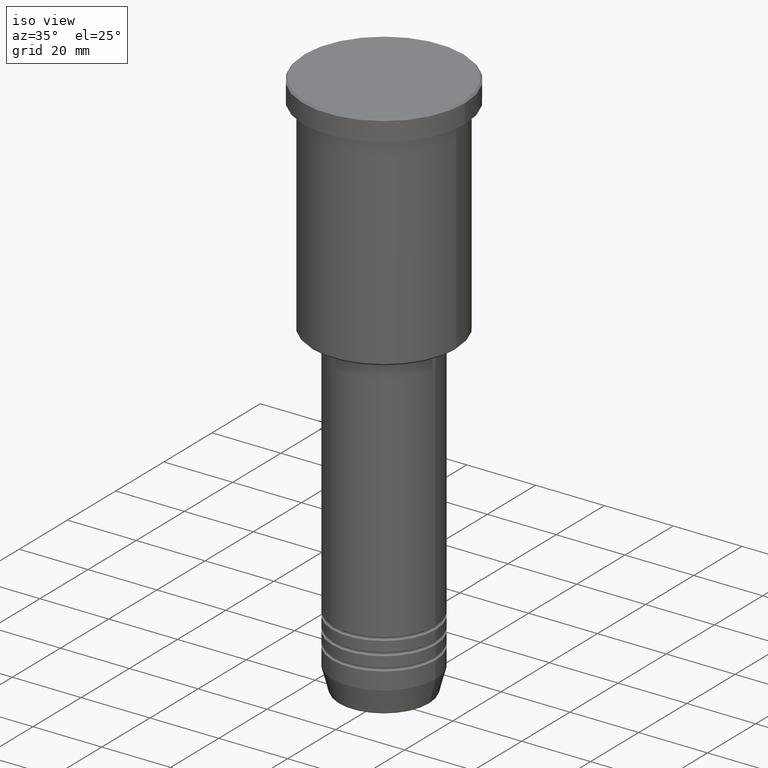
[diagram: clean part render]
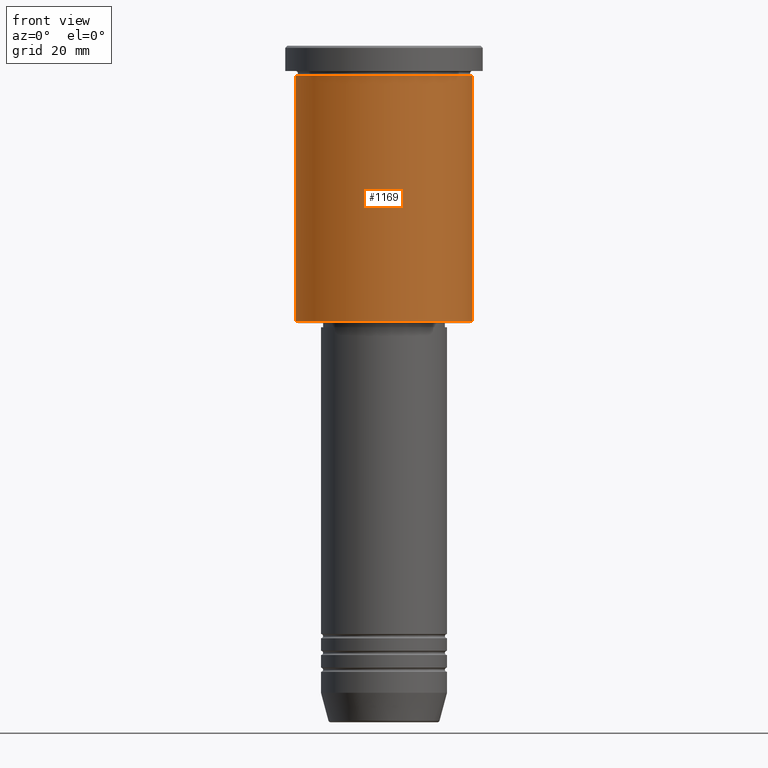
[diagram: tour spotlight — one face highlighted and labeled with its STEP entity id]
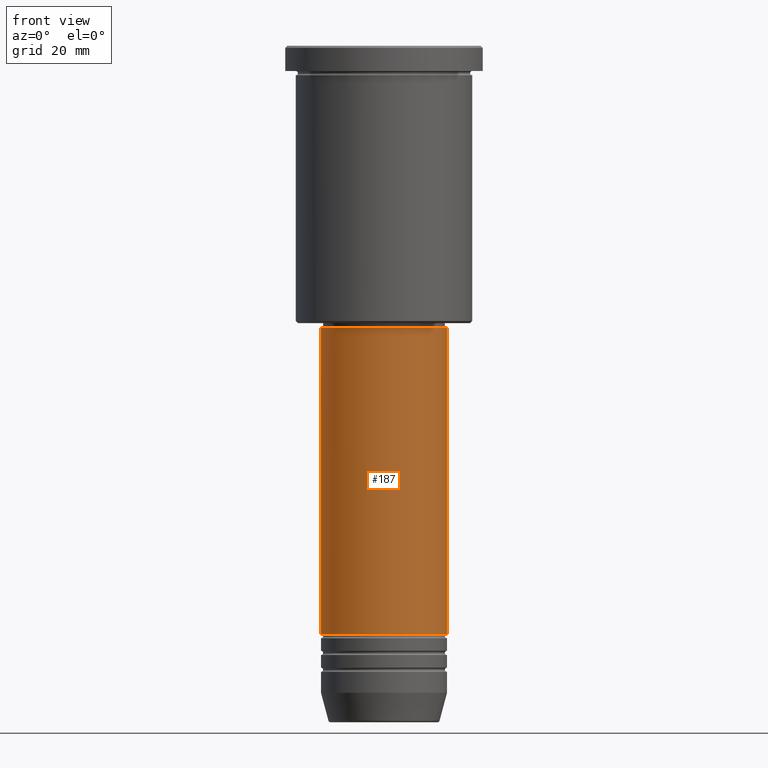
[diagram: tour spotlight — one face highlighted and labeled with its STEP entity id]
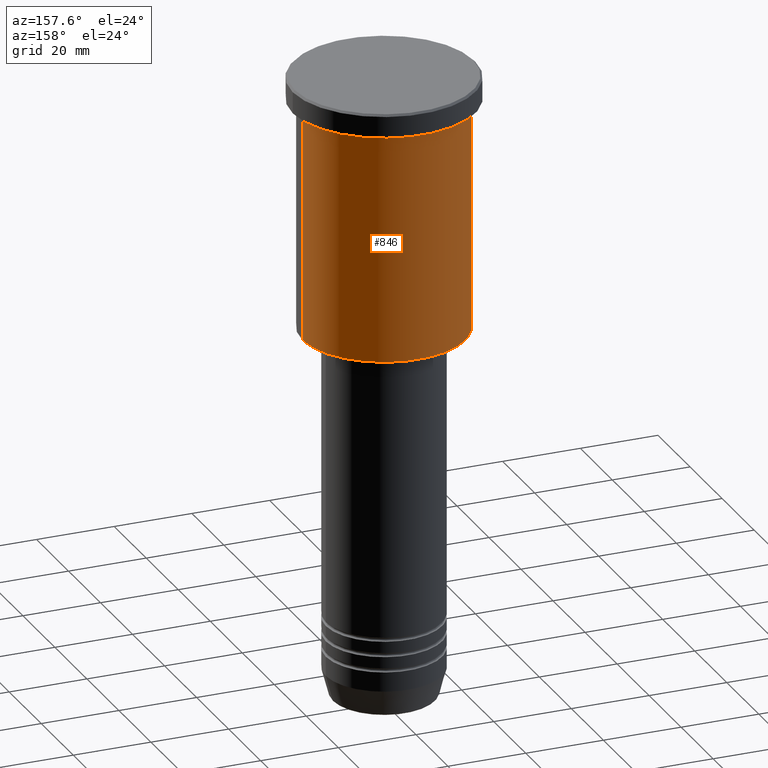
[diagram: tour spotlight — one face highlighted and labeled with its STEP entity id]
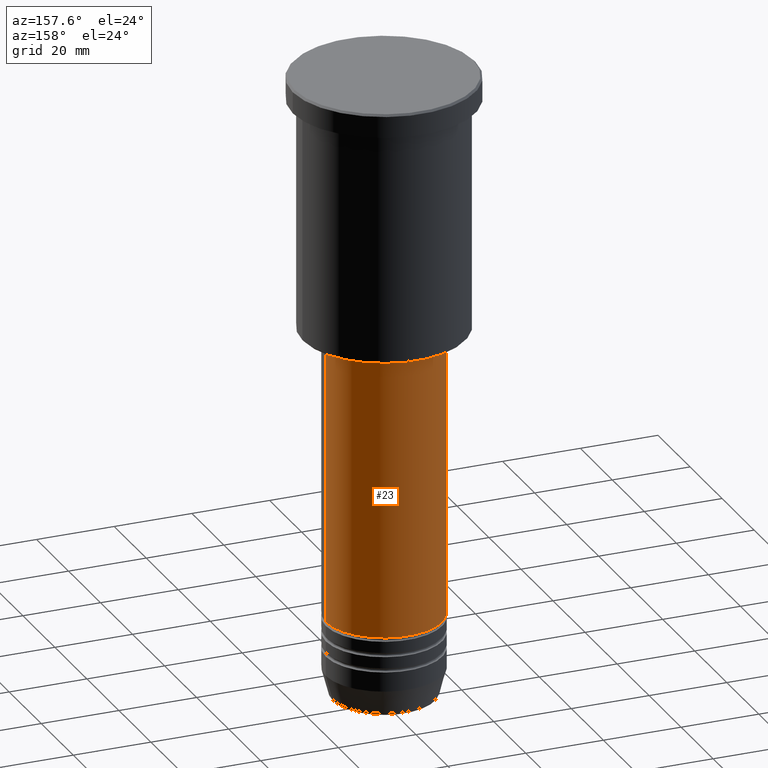
[diagram: tour spotlight — one face highlighted and labeled with its STEP entity id]
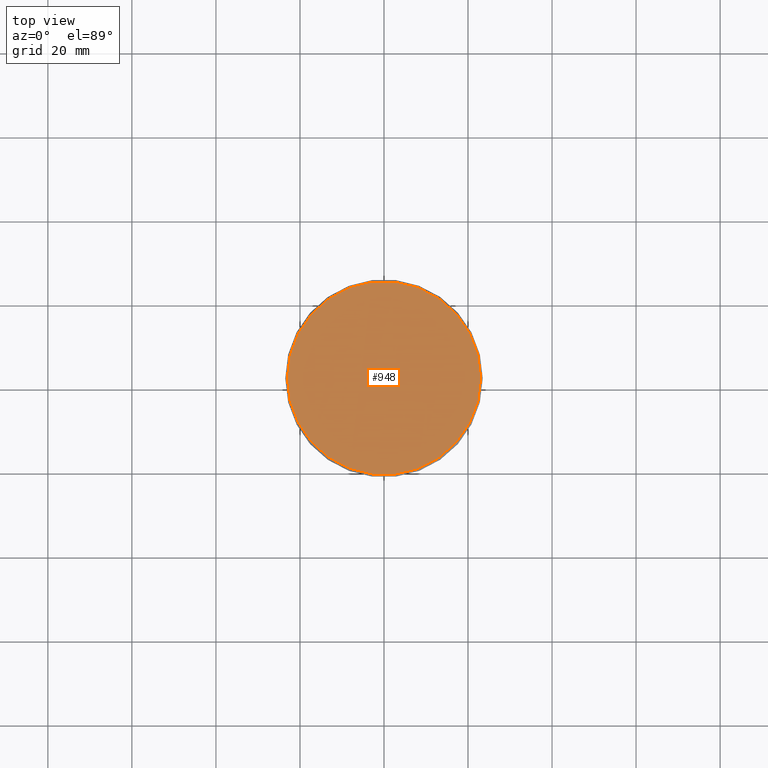
[diagram: tour spotlight — one face highlighted and labeled with its STEP entity id]
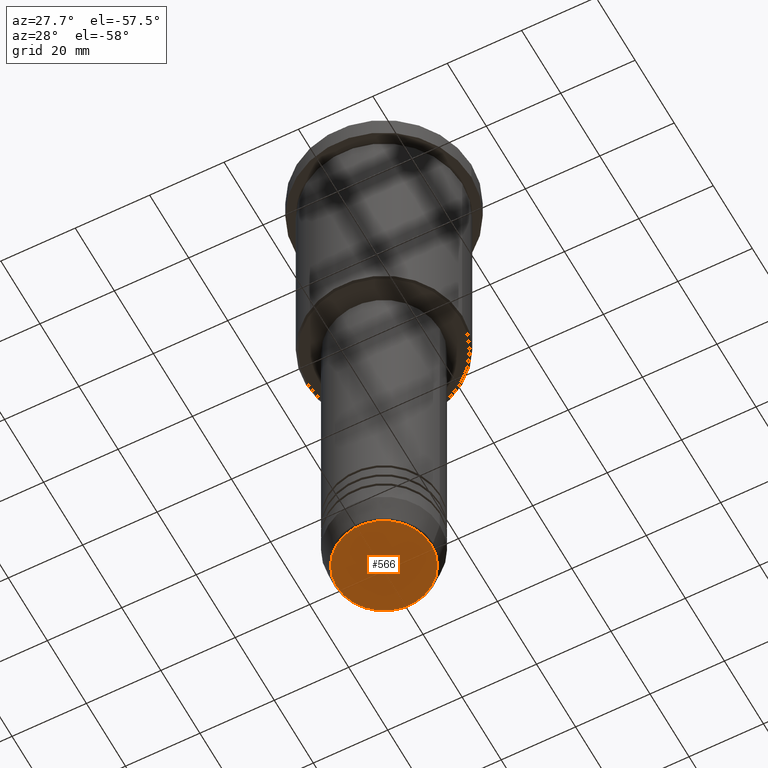
[diagram: tour spotlight — one face highlighted and labeled with its STEP entity id]
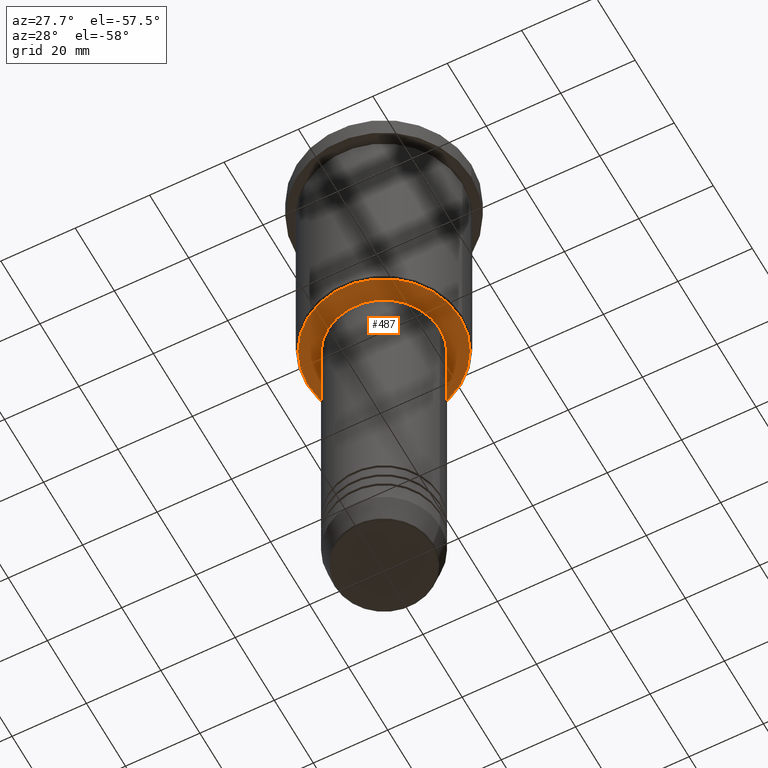
[diagram: tour spotlight — one face highlighted and labeled with its STEP entity id]
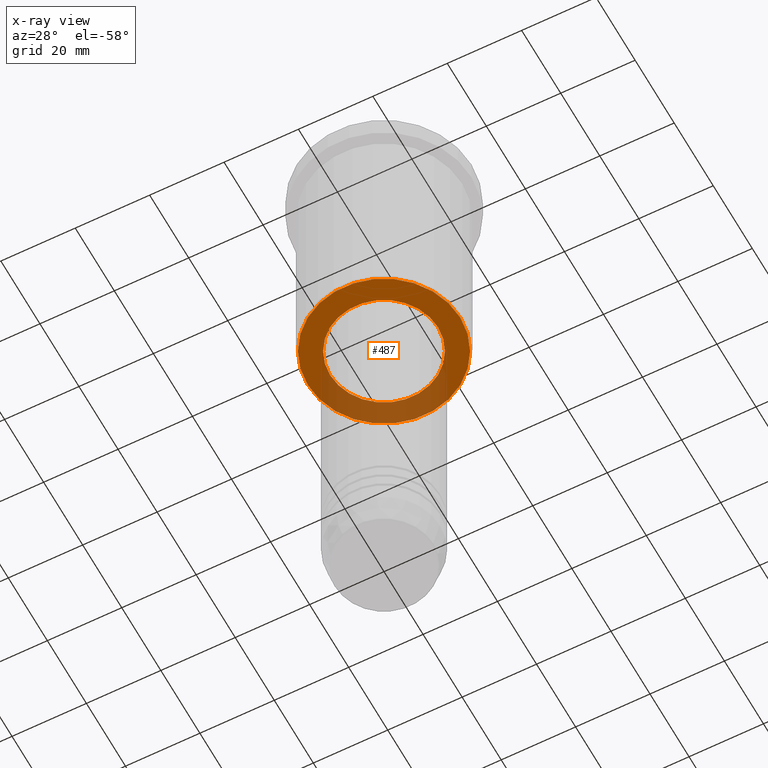
[diagram: x-ray of the same camera — body ghosted, this tour face saturated]
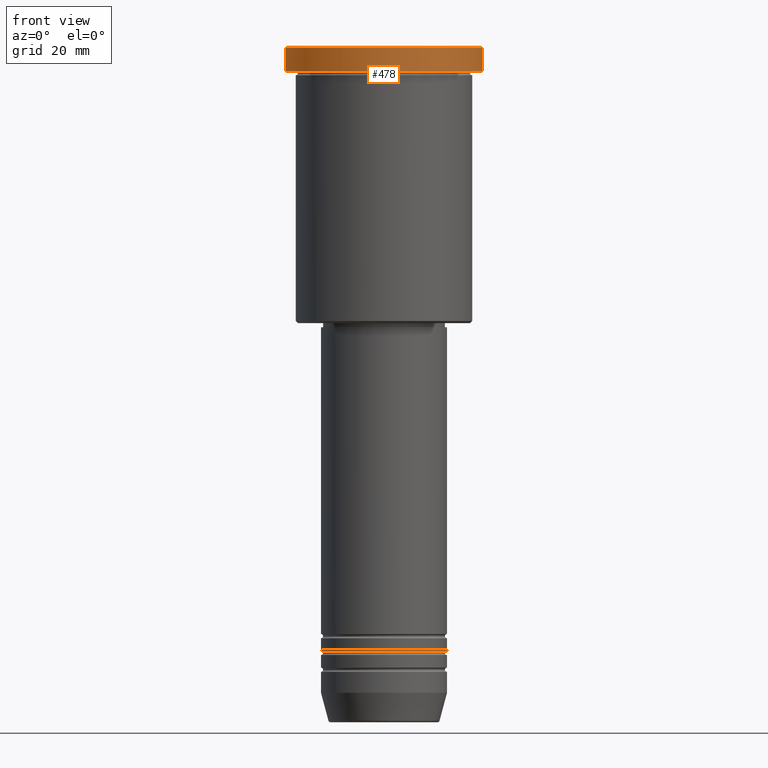
[diagram: tour spotlight — one face highlighted and labeled with its STEP entity id]
A machine part: a face-by-face anatomy tour. The part has 43 B-rep faces; the first image is the clean iso view, then the 8 largest visible faces are spotlighted one at a time (largest first), each with its STEP entity span.

Face 1 — front view, entity #1169. In plain terms, the highlighted cylindrical surface (partial cylindrical patch) has radius 21 mm, axis along (-0, -0, 1).
Definition (entity closure, byte-faithful):
#22 = ORIENTED_EDGE ( 'NONE', *, *, #238, .F. ) ;
#33 = CARTESIAN_POINT ( 'NONE',  ( 0.000000000000000000, 0.000000000000000000, -6.999999999999993783 ) ) ;
#122 = DIRECTION ( 'NONE',  ( -0.000000000000000000, -0.000000000000000000, 1.000000000000000000 ) ) ;
#131 = DIRECTION ( 'NONE',  ( -1.000000000000000000, 0.000000000000000000, 0.000000000000000000 ) ) ;
#168 = AXIS2_PLACEMENT_3D ( 'NONE', #711, #1080, #980 ) ;
#185 = ORIENTED_EDGE ( 'NONE', *, *, #626, .F. ) ;
#221 = LINE ( 'NONE', #334, #678 ) ;
#226 = EDGE_CURVE ( 'NONE', #498, #1026, #221, .T. ) ;
#238 = EDGE_CURVE ( 'NONE', #1013, #1134, #1015, .T. ) ;
#240 = FACE_OUTER_BOUND ( 'NONE', #444, .T. ) ;
#334 = CARTESIAN_POINT ( 'NONE',  ( 21.00000000000000000, 0.000000000000000000, 0.000000000000000000 ) ) ;
#398 = CARTESIAN_POINT ( 'NONE',  ( -21.00000000000000000, 2.571758278209441661E-15, -65.50000000000002842 ) ) ;
#441 = CIRCLE ( 'NONE', #842, 21.00000000000000000 ) ;
#444 = EDGE_LOOP ( 'NONE', ( #22, #683, #992, #185 ) ) ;
#455 = VECTOR ( 'NONE', #722, 1000.000000000000000 ) ;
#492 = DIRECTION ( 'NONE',  ( -0.000000000000000000, -0.000000000000000000, 1.000000000000000000 ) ) ;
#498 = VERTEX_POINT ( 'NONE', #1081 ) ;
#542 = CARTESIAN_POINT ( 'NONE',  ( -21.00000000000000000, 2.571758278209441661E-15, 0.000000000000000000 ) ) ;
#578 = DIRECTION ( 'NONE',  ( 1.000000000000000000, 0.000000000000000000, 0.000000000000000000 ) ) ;
#603 = DIRECTION ( 'NONE',  ( -0.000000000000000000, -0.000000000000000000, 1.000000000000000000 ) ) ;
#607 = CYLINDRICAL_SURFACE ( 'NONE', #168, 21.00000000000000000 ) ;
#626 = EDGE_CURVE ( 'NONE', #1134, #1026, #976, .T. ) ;
#667 = CARTESIAN_POINT ( 'NONE',  ( -21.00000000000000000, 2.571758278209441661E-15, -6.999999999999993783 ) ) ;
#678 = VECTOR ( 'NONE', #603, 1000.000000000000000 ) ;
#683 = ORIENTED_EDGE ( 'NONE', *, *, #920, .T. ) ;
#711 = CARTESIAN_POINT ( 'NONE',  ( 0.000000000000000000, 0.000000000000000000, 0.000000000000000000 ) ) ;
#722 = DIRECTION ( 'NONE',  ( -0.000000000000000000, -0.000000000000000000, 1.000000000000000000 ) ) ;
#785 = AXIS2_PLACEMENT_3D ( 'NONE', #33, #492, #578 ) ;
#842 = AXIS2_PLACEMENT_3D ( 'NONE', #952, #122, #131 ) ;
#920 = EDGE_CURVE ( 'NONE', #1013, #498, #441, .T. ) ;
#952 = CARTESIAN_POINT ( 'NONE',  ( 0.000000000000000000, 0.000000000000000000, -65.50000000000002842 ) ) ;
#976 = CIRCLE ( 'NONE', #785, 21.00000000000000000 ) ;
#980 = DIRECTION ( 'NONE',  ( 1.000000000000000000, 0.000000000000000000, 0.000000000000000000 ) ) ;
#992 = ORIENTED_EDGE ( 'NONE', *, *, #226, .T. ) ;
#1004 = CARTESIAN_POINT ( 'NONE',  ( 21.00000000000000000, 0.000000000000000000, -6.999999999999993783 ) ) ;
#1013 = VERTEX_POINT ( 'NONE', #398 ) ;
#1015 = LINE ( 'NONE', #542, #455 ) ;
#1026 = VERTEX_POINT ( 'NONE', #1004 ) ;
#1080 = DIRECTION ( 'NONE',  ( -0.000000000000000000, -0.000000000000000000, 1.000000000000000000 ) ) ;
#1081 = CARTESIAN_POINT ( 'NONE',  ( 21.00000000000000000, 0.000000000000000000, -65.50000000000002842 ) ) ;
#1134 = VERTEX_POINT ( 'NONE', #667 ) ;
#1169 = ADVANCED_FACE ( 'NONE', ( #240 ), #607, .T. ) ;

Face 2 — front view, entity #187. In plain terms, the highlighted cylindrical surface (partial cylindrical patch) has radius 15 mm, axis along (-0, -0, 1).
Definition (entity closure, byte-faithful):
#65 = CARTESIAN_POINT ( 'NONE',  ( 15.00000000000000000, 0.000000000000000000, 0.000000000000000000 ) ) ;
#117 = DIRECTION ( 'NONE',  ( -0.000000000000000000, -0.000000000000000000, 1.000000000000000000 ) ) ;
#125 = VERTEX_POINT ( 'NONE', #254 ) ;
#187 = ADVANCED_FACE ( 'NONE', ( #742 ), #1033, .T. ) ;
#199 = LINE ( 'NONE', #648, #804 ) ;
#213 = VERTEX_POINT ( 'NONE', #876 ) ;
#254 = CARTESIAN_POINT ( 'NONE',  ( 15.00000000000000000, 0.000000000000000000, -139.9999999999999147 ) ) ;
#259 = AXIS2_PLACEMENT_3D ( 'NONE', #555, #802, #448 ) ;
#291 = ORIENTED_EDGE ( 'NONE', *, *, #403, .F. ) ;
#323 = EDGE_CURVE ( 'NONE', #386, #213, #535, .T. ) ;
#325 = CARTESIAN_POINT ( 'NONE',  ( 0.000000000000000000, 0.000000000000000000, -139.9999999999999147 ) ) ;
#349 = DIRECTION ( 'NONE',  ( -0.000000000000000000, -0.000000000000000000, 1.000000000000000000 ) ) ;
#371 = ORIENTED_EDGE ( 'NONE', *, *, #1038, .T. ) ;
#386 = VERTEX_POINT ( 'NONE', #772 ) ;
#403 = EDGE_CURVE ( 'NONE', #1007, #386, #199, .T. ) ;
#417 = DIRECTION ( 'NONE',  ( -0.000000000000000000, -0.000000000000000000, 1.000000000000000000 ) ) ;
#432 = LINE ( 'NONE', #65, #934 ) ;
#448 = DIRECTION ( 'NONE',  ( 1.000000000000000000, 0.000000000000000000, 0.000000000000000000 ) ) ;
#527 = EDGE_LOOP ( 'NONE', ( #291, #983, #371, #740 ) ) ;
#535 = CIRCLE ( 'NONE', #259, 15.00000000000000000 ) ;
#555 = CARTESIAN_POINT ( 'NONE',  ( 0.000000000000000000, 0.000000000000000000, -67.00000000000002842 ) ) ;
#648 = CARTESIAN_POINT ( 'NONE',  ( -15.00000000000000000, 1.836970198721029589E-15, 0.000000000000000000 ) ) ;
#672 = DIRECTION ( 'NONE',  ( 1.000000000000000000, 0.000000000000000000, 0.000000000000000000 ) ) ;
#740 = ORIENTED_EDGE ( 'NONE', *, *, #323, .F. ) ;
#742 = FACE_OUTER_BOUND ( 'NONE', #527, .T. ) ;
#772 = CARTESIAN_POINT ( 'NONE',  ( -15.00000000000000000, 1.836970198721029589E-15, -67.00000000000002842 ) ) ;
#776 = DIRECTION ( 'NONE',  ( -0.000000000000000000, -0.000000000000000000, 1.000000000000000000 ) ) ;
#802 = DIRECTION ( 'NONE',  ( -0.000000000000000000, -0.000000000000000000, 1.000000000000000000 ) ) ;
#804 = VECTOR ( 'NONE', #117, 1000.000000000000000 ) ;
#839 = CARTESIAN_POINT ( 'NONE',  ( -15.00000000000000000, 1.836970198721029589E-15, -139.9999999999999147 ) ) ;
#858 = DIRECTION ( 'NONE',  ( 1.000000000000000000, 0.000000000000000000, 0.000000000000000000 ) ) ;
#871 = EDGE_CURVE ( 'NONE', #1007, #125, #1168, .T. ) ;
#876 = CARTESIAN_POINT ( 'NONE',  ( 15.00000000000000000, 0.000000000000000000, -67.00000000000002842 ) ) ;
#899 = AXIS2_PLACEMENT_3D ( 'NONE', #1040, #417, #672 ) ;
#919 = AXIS2_PLACEMENT_3D ( 'NONE', #325, #776, #858 ) ;
#934 = VECTOR ( 'NONE', #349, 1000.000000000000000 ) ;
#983 = ORIENTED_EDGE ( 'NONE', *, *, #871, .T. ) ;
#1007 = VERTEX_POINT ( 'NONE', #839 ) ;
#1033 = CYLINDRICAL_SURFACE ( 'NONE', #899, 15.00000000000000000 ) ;
#1038 = EDGE_CURVE ( 'NONE', #125, #213, #432, .T. ) ;
#1040 = CARTESIAN_POINT ( 'NONE',  ( 0.000000000000000000, 0.000000000000000000, 0.000000000000000000 ) ) ;
#1168 = CIRCLE ( 'NONE', #919, 15.00000000000000000 ) ;

Face 3 — auxiliary view, entity #846. In plain terms, the highlighted cylindrical surface (partial cylindrical patch) has radius 21 mm, axis along (-0, -0, 1).
Definition (entity closure, byte-faithful):
#12 = ORIENTED_EDGE ( 'NONE', *, *, #355, .T. ) ;
#39 = AXIS2_PLACEMENT_3D ( 'NONE', #723, #913, #88 ) ;
#88 = DIRECTION ( 'NONE',  ( -1.000000000000000000, 0.000000000000000000, 0.000000000000000000 ) ) ;
#221 = LINE ( 'NONE', #334, #678 ) ;
#226 = EDGE_CURVE ( 'NONE', #498, #1026, #221, .T. ) ;
#238 = EDGE_CURVE ( 'NONE', #1013, #1134, #1015, .T. ) ;
#312 = ORIENTED_EDGE ( 'NONE', *, *, #696, .F. ) ;
#334 = CARTESIAN_POINT ( 'NONE',  ( 21.00000000000000000, 0.000000000000000000, 0.000000000000000000 ) ) ;
#345 = FACE_OUTER_BOUND ( 'NONE', #346, .T. ) ;
#346 = EDGE_LOOP ( 'NONE', ( #12, #794, #312, #1028 ) ) ;
#350 = CARTESIAN_POINT ( 'NONE',  ( 0.000000000000000000, 0.000000000000000000, -6.999999999999993783 ) ) ;
#355 = EDGE_CURVE ( 'NONE', #498, #1013, #553, .T. ) ;
#398 = CARTESIAN_POINT ( 'NONE',  ( -21.00000000000000000, 2.571758278209441661E-15, -65.50000000000002842 ) ) ;
#428 = AXIS2_PLACEMENT_3D ( 'NONE', #746, #942, #490 ) ;
#455 = VECTOR ( 'NONE', #722, 1000.000000000000000 ) ;
#490 = DIRECTION ( 'NONE',  ( 1.000000000000000000, 0.000000000000000000, 0.000000000000000000 ) ) ;
#498 = VERTEX_POINT ( 'NONE', #1081 ) ;
#542 = CARTESIAN_POINT ( 'NONE',  ( -21.00000000000000000, 2.571758278209441661E-15, 0.000000000000000000 ) ) ;
#553 = CIRCLE ( 'NONE', #39, 21.00000000000000000 ) ;
#561 = CYLINDRICAL_SURFACE ( 'NONE', #428, 21.00000000000000000 ) ;
#603 = DIRECTION ( 'NONE',  ( -0.000000000000000000, -0.000000000000000000, 1.000000000000000000 ) ) ;
#667 = CARTESIAN_POINT ( 'NONE',  ( -21.00000000000000000, 2.571758278209441661E-15, -6.999999999999993783 ) ) ;
#678 = VECTOR ( 'NONE', #603, 1000.000000000000000 ) ;
#696 = EDGE_CURVE ( 'NONE', #1026, #1134, #1020, .T. ) ;
#722 = DIRECTION ( 'NONE',  ( -0.000000000000000000, -0.000000000000000000, 1.000000000000000000 ) ) ;
#723 = CARTESIAN_POINT ( 'NONE',  ( 0.000000000000000000, 0.000000000000000000, -65.50000000000002842 ) ) ;
#746 = CARTESIAN_POINT ( 'NONE',  ( 0.000000000000000000, 0.000000000000000000, 0.000000000000000000 ) ) ;
#794 = ORIENTED_EDGE ( 'NONE', *, *, #238, .T. ) ;
#809 = DIRECTION ( 'NONE',  ( -0.000000000000000000, -0.000000000000000000, 1.000000000000000000 ) ) ;
#846 = ADVANCED_FACE ( 'NONE', ( #345 ), #561, .T. ) ;
#896 = DIRECTION ( 'NONE',  ( 1.000000000000000000, 0.000000000000000000, 0.000000000000000000 ) ) ;
#913 = DIRECTION ( 'NONE',  ( -0.000000000000000000, -0.000000000000000000, 1.000000000000000000 ) ) ;
#942 = DIRECTION ( 'NONE',  ( -0.000000000000000000, -0.000000000000000000, 1.000000000000000000 ) ) ;
#1004 = CARTESIAN_POINT ( 'NONE',  ( 21.00000000000000000, 0.000000000000000000, -6.999999999999993783 ) ) ;
#1013 = VERTEX_POINT ( 'NONE', #398 ) ;
#1015 = LINE ( 'NONE', #542, #455 ) ;
#1020 = CIRCLE ( 'NONE', #1167, 21.00000000000000000 ) ;
#1026 = VERTEX_POINT ( 'NONE', #1004 ) ;
#1028 = ORIENTED_EDGE ( 'NONE', *, *, #226, .F. ) ;
#1081 = CARTESIAN_POINT ( 'NONE',  ( 21.00000000000000000, 0.000000000000000000, -65.50000000000002842 ) ) ;
#1134 = VERTEX_POINT ( 'NONE', #667 ) ;
#1167 = AXIS2_PLACEMENT_3D ( 'NONE', #350, #809, #896 ) ;

Face 4 — auxiliary view, entity #23. In plain terms, the highlighted cylindrical surface (partial cylindrical patch) has radius 15 mm, axis along (-0, -0, 1).
Definition (entity closure, byte-faithful):
#23 = ADVANCED_FACE ( 'NONE', ( #47 ), #295, .T. ) ;
#47 = FACE_OUTER_BOUND ( 'NONE', #290, .T. ) ;
#65 = CARTESIAN_POINT ( 'NONE',  ( 15.00000000000000000, 0.000000000000000000, 0.000000000000000000 ) ) ;
#93 = ORIENTED_EDGE ( 'NONE', *, *, #732, .F. ) ;
#117 = DIRECTION ( 'NONE',  ( -0.000000000000000000, -0.000000000000000000, 1.000000000000000000 ) ) ;
#125 = VERTEX_POINT ( 'NONE', #254 ) ;
#166 = CIRCLE ( 'NONE', #439, 15.00000000000000000 ) ;
#199 = LINE ( 'NONE', #648, #804 ) ;
#213 = VERTEX_POINT ( 'NONE', #876 ) ;
#239 = AXIS2_PLACEMENT_3D ( 'NONE', #1030, #927, #647 ) ;
#243 = DIRECTION ( 'NONE',  ( 1.000000000000000000, 0.000000000000000000, 0.000000000000000000 ) ) ;
#251 = CARTESIAN_POINT ( 'NONE',  ( 0.000000000000000000, 0.000000000000000000, -67.00000000000002842 ) ) ;
#254 = CARTESIAN_POINT ( 'NONE',  ( 15.00000000000000000, 0.000000000000000000, -139.9999999999999147 ) ) ;
#290 = EDGE_LOOP ( 'NONE', ( #645, #632, #93, #409 ) ) ;
#295 = CYLINDRICAL_SURFACE ( 'NONE', #239, 15.00000000000000000 ) ;
#316 = DIRECTION ( 'NONE',  ( 1.000000000000000000, 0.000000000000000000, 0.000000000000000000 ) ) ;
#349 = DIRECTION ( 'NONE',  ( -0.000000000000000000, -0.000000000000000000, 1.000000000000000000 ) ) ;
#386 = VERTEX_POINT ( 'NONE', #772 ) ;
#387 = AXIS2_PLACEMENT_3D ( 'NONE', #1132, #1032, #316 ) ;
#403 = EDGE_CURVE ( 'NONE', #1007, #386, #199, .T. ) ;
#409 = ORIENTED_EDGE ( 'NONE', *, *, #1038, .F. ) ;
#432 = LINE ( 'NONE', #65, #934 ) ;
#439 = AXIS2_PLACEMENT_3D ( 'NONE', #251, #816, #243 ) ;
#632 = ORIENTED_EDGE ( 'NONE', *, *, #403, .T. ) ;
#645 = ORIENTED_EDGE ( 'NONE', *, *, #1119, .T. ) ;
#647 = DIRECTION ( 'NONE',  ( 1.000000000000000000, 0.000000000000000000, 0.000000000000000000 ) ) ;
#648 = CARTESIAN_POINT ( 'NONE',  ( -15.00000000000000000, 1.836970198721029589E-15, 0.000000000000000000 ) ) ;
#732 = EDGE_CURVE ( 'NONE', #213, #386, #166, .T. ) ;
#772 = CARTESIAN_POINT ( 'NONE',  ( -15.00000000000000000, 1.836970198721029589E-15, -67.00000000000002842 ) ) ;
#804 = VECTOR ( 'NONE', #117, 1000.000000000000000 ) ;
#816 = DIRECTION ( 'NONE',  ( -0.000000000000000000, -0.000000000000000000, 1.000000000000000000 ) ) ;
#839 = CARTESIAN_POINT ( 'NONE',  ( -15.00000000000000000, 1.836970198721029589E-15, -139.9999999999999147 ) ) ;
#876 = CARTESIAN_POINT ( 'NONE',  ( 15.00000000000000000, 0.000000000000000000, -67.00000000000002842 ) ) ;
#927 = DIRECTION ( 'NONE',  ( -0.000000000000000000, -0.000000000000000000, 1.000000000000000000 ) ) ;
#934 = VECTOR ( 'NONE', #349, 1000.000000000000000 ) ;
#1001 = CIRCLE ( 'NONE', #387, 15.00000000000000000 ) ;
#1007 = VERTEX_POINT ( 'NONE', #839 ) ;
#1030 = CARTESIAN_POINT ( 'NONE',  ( 0.000000000000000000, 0.000000000000000000, 0.000000000000000000 ) ) ;
#1032 = DIRECTION ( 'NONE',  ( -0.000000000000000000, -0.000000000000000000, 1.000000000000000000 ) ) ;
#1038 = EDGE_CURVE ( 'NONE', #125, #213, #432, .T. ) ;
#1119 = EDGE_CURVE ( 'NONE', #125, #1007, #1001, .T. ) ;
#1132 = CARTESIAN_POINT ( 'NONE',  ( 0.000000000000000000, 0.000000000000000000, -139.9999999999999147 ) ) ;

Face 5 — top view, entity #948. In plain terms, the highlighted planar face has unit normal (0, -0, 1).
Definition (entity closure, byte-faithful):
#34 = EDGE_CURVE ( 'NONE', #433, #275, #380, .T. ) ;
#52 = FACE_OUTER_BOUND ( 'NONE', #270, .T. ) ;
#77 = ORIENTED_EDGE ( 'NONE', *, *, #599, .T. ) ;
#170 = DIRECTION ( 'NONE',  ( 1.000000000000000000, 0.000000000000000000, 0.000000000000000000 ) ) ;
#237 = ORIENTED_EDGE ( 'NONE', *, *, #34, .T. ) ;
#270 = EDGE_LOOP ( 'NONE', ( #237, #77 ) ) ;
#275 = VERTEX_POINT ( 'NONE', #817 ) ;
#306 = AXIS2_PLACEMENT_3D ( 'NONE', #1064, #495, #1055 ) ;
#328 = CIRCLE ( 'NONE', #306, 22.99999999999999645 ) ;
#380 = CIRCLE ( 'NONE', #761, 22.99999999999999645 ) ;
#433 = VERTEX_POINT ( 'NONE', #1109 ) ;
#495 = DIRECTION ( 'NONE',  ( -0.000000000000000000, -0.000000000000000000, 1.000000000000000000 ) ) ;
#593 = DIRECTION ( 'NONE',  ( 1.000000000000000000, 0.000000000000000000, 0.000000000000000000 ) ) ;
#599 = EDGE_CURVE ( 'NONE', #275, #433, #328, .T. ) ;
#623 = DIRECTION ( 'NONE',  ( -0.000000000000000000, -0.000000000000000000, 1.000000000000000000 ) ) ;
#701 = AXIS2_PLACEMENT_3D ( 'NONE', #958, #765, #593 ) ;
#761 = AXIS2_PLACEMENT_3D ( 'NONE', #895, #623, #170 ) ;
#765 = DIRECTION ( 'NONE',  ( 0.000000000000000000, -0.000000000000000000, 1.000000000000000000 ) ) ;
#780 = PLANE ( 'NONE',  #701 ) ;
#817 = CARTESIAN_POINT ( 'NONE',  ( 22.99999999999999645, 2.847303808017596139E-15, 0.000000000000000000 ) ) ;
#895 = CARTESIAN_POINT ( 'NONE',  ( 0.000000000000000000, 0.000000000000000000, 0.000000000000000000 ) ) ;
#948 = ADVANCED_FACE ( 'NONE', ( #52 ), #780, .T. ) ;
#958 = CARTESIAN_POINT ( 'NONE',  ( 0.000000000000000000, 0.000000000000000000, 0.000000000000000000 ) ) ;
#1055 = DIRECTION ( 'NONE',  ( 1.000000000000000000, 0.000000000000000000, 0.000000000000000000 ) ) ;
#1064 = CARTESIAN_POINT ( 'NONE',  ( 0.000000000000000000, 0.000000000000000000, 0.000000000000000000 ) ) ;
#1109 = CARTESIAN_POINT ( 'NONE',  ( -22.99999999999999645, 0.000000000000000000, 0.000000000000000000 ) ) ;

Face 6 — auxiliary view, entity #566. In plain terms, the highlighted planar face has unit normal (0, -0, 1).
Definition (entity closure, byte-faithful):
#43 = DIRECTION ( 'NONE',  ( 1.000000000000000000, 0.000000000000000000, 0.000000000000000000 ) ) ;
#60 = DIRECTION ( 'NONE',  ( 0.000000000000000000, -0.000000000000000000, 1.000000000000000000 ) ) ;
#64 = EDGE_CURVE ( 'NONE', #510, #390, #1058, .T. ) ;
#81 = CARTESIAN_POINT ( 'NONE',  ( 0.000000000000000000, 0.000000000000000000, -161.0000000000000284 ) ) ;
#130 = EDGE_CURVE ( 'NONE', #390, #510, #697, .T. ) ;
#160 = AXIS2_PLACEMENT_3D ( 'NONE', #762, #841, #482 ) ;
#208 = ORIENTED_EDGE ( 'NONE', *, *, #130, .T. ) ;
#390 = VERTEX_POINT ( 'NONE', #1063 ) ;
#402 = ORIENTED_EDGE ( 'NONE', *, *, #64, .T. ) ;
#410 = CARTESIAN_POINT ( 'NONE',  ( 0.000000000000000000, 0.000000000000000000, -161.0000000000000284 ) ) ;
#482 = DIRECTION ( 'NONE',  ( 1.000000000000000000, 0.000000000000000000, 0.000000000000000000 ) ) ;
#510 = VERTEX_POINT ( 'NONE', #702 ) ;
#566 = ADVANCED_FACE ( 'NONE', ( #855 ), #861, .F. ) ;
#590 = AXIS2_PLACEMENT_3D ( 'NONE', #410, #60, #43 ) ;
#616 = DIRECTION ( 'NONE',  ( 1.000000000000000000, 0.000000000000000000, 0.000000000000000000 ) ) ;
#628 = DIRECTION ( 'NONE',  ( 0.000000000000000000, 0.000000000000000000, -1.000000000000000000 ) ) ;
#697 = CIRCLE ( 'NONE', #1042, 12.74069215899265828 ) ;
#702 = CARTESIAN_POINT ( 'NONE',  ( 12.74069215899265828, 0.000000000000000000, -161.0000000000000284 ) ) ;
#762 = CARTESIAN_POINT ( 'NONE',  ( 0.000000000000000000, 0.000000000000000000, -161.0000000000000284 ) ) ;
#841 = DIRECTION ( 'NONE',  ( 0.000000000000000000, 0.000000000000000000, -1.000000000000000000 ) ) ;
#855 = FACE_OUTER_BOUND ( 'NONE', #999, .T. ) ;
#861 = PLANE ( 'NONE',  #590 ) ;
#999 = EDGE_LOOP ( 'NONE', ( #402, #208 ) ) ;
#1042 = AXIS2_PLACEMENT_3D ( 'NONE', #81, #628, #616 ) ;
#1058 = CIRCLE ( 'NONE', #160, 12.74069215899265828 ) ;
#1063 = CARTESIAN_POINT ( 'NONE',  ( -12.74069215899265828, 1.589857736427681035E-15, -161.0000000000000284 ) ) ;

Face 7 — auxiliary view, entity #487. An x-ray twin of the same camera follows (body ghosted, this face saturated) — the face is partly hidden behind the body. In plain terms, the highlighted planar face has unit normal (0, 0, -1).
Definition (entity closure, byte-faithful):
#8 = ORIENTED_EDGE ( 'NONE', *, *, #705, .T. ) ;
#69 = EDGE_CURVE ( 'NONE', #1068, #222, #676, .T. ) ;
#73 = DIRECTION ( 'NONE',  ( 0.000000000000000000, 0.000000000000000000, -1.000000000000000000 ) ) ;
#104 = CARTESIAN_POINT ( 'NONE',  ( 20.50000000000001776, 0.000000000000000000, -66.00000000000002842 ) ) ;
#126 = AXIS2_PLACEMENT_3D ( 'NONE', #890, #73, #1084 ) ;
#132 = DIRECTION ( 'NONE',  ( -0.000000000000000000, -0.000000000000000000, 1.000000000000000000 ) ) ;
#154 = CARTESIAN_POINT ( 'NONE',  ( -14.49999999999999822, 1.775737858763662015E-15, -66.00000000000002842 ) ) ;
#165 = CIRCLE ( 'NONE', #126, 20.50000000000001776 ) ;
#215 = DIRECTION ( 'NONE',  ( 0.000000000000000000, 0.000000000000000000, -1.000000000000000000 ) ) ;
#222 = VERTEX_POINT ( 'NONE', #695 ) ;
#234 = EDGE_CURVE ( 'NONE', #222, #1068, #382, .T. ) ;
#246 = CARTESIAN_POINT ( 'NONE',  ( 0.000000000000000000, 0.000000000000000000, -66.00000000000002842 ) ) ;
#250 = CARTESIAN_POINT ( 'NONE',  ( 0.000000000000000000, 21.00000000000000000, -66.00000000000002842 ) ) ;
#298 = ORIENTED_EDGE ( 'NONE', *, *, #69, .T. ) ;
#311 = CARTESIAN_POINT ( 'NONE',  ( -20.50000000000001776, 2.541142108230759057E-15, -66.00000000000002842 ) ) ;
#336 = DIRECTION ( 'NONE',  ( -1.000000000000000000, 0.000000000000000000, -0.000000000000000000 ) ) ;
#340 = DIRECTION ( 'NONE',  ( 0.000000000000000000, 0.000000000000000000, -1.000000000000000000 ) ) ;
#344 = AXIS2_PLACEMENT_3D ( 'NONE', #663, #215, #582 ) ;
#382 = CIRCLE ( 'NONE', #975, 14.49999999999999822 ) ;
#487 = ADVANCED_FACE ( 'NONE', ( #757, #519 ), #982, .T. ) ;
#491 = CARTESIAN_POINT ( 'NONE',  ( 0.000000000000000000, 0.000000000000000000, -66.00000000000002842 ) ) ;
#500 = AXIS2_PLACEMENT_3D ( 'NONE', #491, #577, #636 ) ;
#519 = FACE_BOUND ( 'NONE', #737, .T. ) ;
#577 = DIRECTION ( 'NONE',  ( -0.000000000000000000, -0.000000000000000000, 1.000000000000000000 ) ) ;
#582 = DIRECTION ( 'NONE',  ( -1.000000000000000000, 0.000000000000000000, 0.000000000000000000 ) ) ;
#620 = AXIS2_PLACEMENT_3D ( 'NONE', #250, #340, #336 ) ;
#622 = EDGE_LOOP ( 'NONE', ( #953, #8 ) ) ;
#636 = DIRECTION ( 'NONE',  ( 1.000000000000000000, 0.000000000000000000, 0.000000000000000000 ) ) ;
#654 = VERTEX_POINT ( 'NONE', #311 ) ;
#663 = CARTESIAN_POINT ( 'NONE',  ( 0.000000000000000000, 0.000000000000000000, -66.00000000000002842 ) ) ;
#676 = CIRCLE ( 'NONE', #500, 14.49999999999999822 ) ;
#688 = DIRECTION ( 'NONE',  ( 1.000000000000000000, 0.000000000000000000, 0.000000000000000000 ) ) ;
#693 = EDGE_CURVE ( 'NONE', #811, #654, #864, .T. ) ;
#695 = CARTESIAN_POINT ( 'NONE',  ( 14.49999999999999822, 0.000000000000000000, -66.00000000000002842 ) ) ;
#705 = EDGE_CURVE ( 'NONE', #654, #811, #165, .T. ) ;
#737 = EDGE_LOOP ( 'NONE', ( #778, #298 ) ) ;
#757 = FACE_OUTER_BOUND ( 'NONE', #622, .T. ) ;
#778 = ORIENTED_EDGE ( 'NONE', *, *, #234, .T. ) ;
#811 = VERTEX_POINT ( 'NONE', #104 ) ;
#864 = CIRCLE ( 'NONE', #344, 20.50000000000001776 ) ;
#890 = CARTESIAN_POINT ( 'NONE',  ( 0.000000000000000000, 0.000000000000000000, -66.00000000000002842 ) ) ;
#953 = ORIENTED_EDGE ( 'NONE', *, *, #693, .T. ) ;
#975 = AXIS2_PLACEMENT_3D ( 'NONE', #246, #132, #688 ) ;
#982 = PLANE ( 'NONE',  #620 ) ;
#1068 = VERTEX_POINT ( 'NONE', #154 ) ;
#1084 = DIRECTION ( 'NONE',  ( -1.000000000000000000, 0.000000000000000000, 0.000000000000000000 ) ) ;

Face 8 — front view, entity #478. In plain terms, the highlighted cylindrical surface (partial cylindrical patch) has radius 23.5 mm, axis along (-0, -0, 1).
Definition (entity closure, byte-faithful):
#55 = DIRECTION ( 'NONE',  ( -0.000000000000000000, -0.000000000000000000, 1.000000000000000000 ) ) ;
#91 = AXIS2_PLACEMENT_3D ( 'NONE', #867, #416, #741 ) ;
#124 = AXIS2_PLACEMENT_3D ( 'NONE', #1101, #558, #465 ) ;
#172 = EDGE_CURVE ( 'NONE', #1071, #337, #1107, .T. ) ;
#236 = DIRECTION ( 'NONE',  ( -0.000000000000000000, -0.000000000000000000, 1.000000000000000000 ) ) ;
#247 = ORIENTED_EDGE ( 'NONE', *, *, #955, .T. ) ;
#317 = CARTESIAN_POINT ( 'NONE',  ( 0.000000000000000000, 0.000000000000000000, 0.000000000000000000 ) ) ;
#322 = EDGE_CURVE ( 'NONE', #1071, #1099, #546, .T. ) ;
#337 = VERTEX_POINT ( 'NONE', #461 ) ;
#359 = ORIENTED_EDGE ( 'NONE', *, *, #322, .F. ) ;
#365 = CIRCLE ( 'NONE', #91, 23.50000000000000000 ) ;
#416 = DIRECTION ( 'NONE',  ( 0.000000000000000000, 0.000000000000000000, -1.000000000000000000 ) ) ;
#425 = FACE_OUTER_BOUND ( 'NONE', #1000, .T. ) ;
#446 = ORIENTED_EDGE ( 'NONE', *, *, #172, .T. ) ;
#461 = CARTESIAN_POINT ( 'NONE',  ( 23.50000000000000000, 0.000000000000000000, -5.999999999999993783 ) ) ;
#465 = DIRECTION ( 'NONE',  ( 1.000000000000000000, 0.000000000000000000, 0.000000000000000000 ) ) ;
#478 = ADVANCED_FACE ( 'NONE', ( #425 ), #788, .T. ) ;
#511 = CARTESIAN_POINT ( 'NONE',  ( 23.50000000000000000, 0.000000000000000000, 0.000000000000000000 ) ) ;
#521 = CARTESIAN_POINT ( 'NONE',  ( 23.50000000000000000, 0.000000000000000000, -0.5000000000000004441 ) ) ;
#546 = LINE ( 'NONE', #1175, #619 ) ;
#558 = DIRECTION ( 'NONE',  ( -0.000000000000000000, -0.000000000000000000, 1.000000000000000000 ) ) ;
#619 = VECTOR ( 'NONE', #1085, 1000.000000000000000 ) ;
#690 = DIRECTION ( 'NONE',  ( 1.000000000000000000, 0.000000000000000000, 0.000000000000000000 ) ) ;
#715 = CARTESIAN_POINT ( 'NONE',  ( -23.50000000000000000, 2.877919977996280320E-15, -0.5000000000000004441 ) ) ;
#741 = DIRECTION ( 'NONE',  ( 1.000000000000000000, 0.000000000000000000, 0.000000000000000000 ) ) ;
#759 = ORIENTED_EDGE ( 'NONE', *, *, #1141, .T. ) ;
#768 = AXIS2_PLACEMENT_3D ( 'NONE', #317, #55, #690 ) ;
#788 = CYLINDRICAL_SURFACE ( 'NONE', #768, 23.50000000000000000 ) ;
#867 = CARTESIAN_POINT ( 'NONE',  ( 0.000000000000000000, 0.000000000000000000, -0.5000000000000004441 ) ) ;
#872 = CARTESIAN_POINT ( 'NONE',  ( -23.50000000000000000, 2.877919977996280320E-15, -5.999999999999993783 ) ) ;
#955 = EDGE_CURVE ( 'NONE', #337, #1036, #964, .T. ) ;
#964 = LINE ( 'NONE', #511, #977 ) ;
#977 = VECTOR ( 'NONE', #236, 1000.000000000000000 ) ;
#1000 = EDGE_LOOP ( 'NONE', ( #359, #446, #247, #759 ) ) ;
#1036 = VERTEX_POINT ( 'NONE', #521 ) ;
#1071 = VERTEX_POINT ( 'NONE', #872 ) ;
#1085 = DIRECTION ( 'NONE',  ( -0.000000000000000000, -0.000000000000000000, 1.000000000000000000 ) ) ;
#1099 = VERTEX_POINT ( 'NONE', #715 ) ;
#1101 = CARTESIAN_POINT ( 'NONE',  ( 0.000000000000000000, 0.000000000000000000, -5.999999999999993783 ) ) ;
#1107 = CIRCLE ( 'NONE', #124, 23.50000000000000000 ) ;
#1141 = EDGE_CURVE ( 'NONE', #1036, #1099, #365, .T. ) ;
#1175 = CARTESIAN_POINT ( 'NONE',  ( -23.50000000000000000, 2.877919977996280320E-15, 0.000000000000000000 ) ) ;